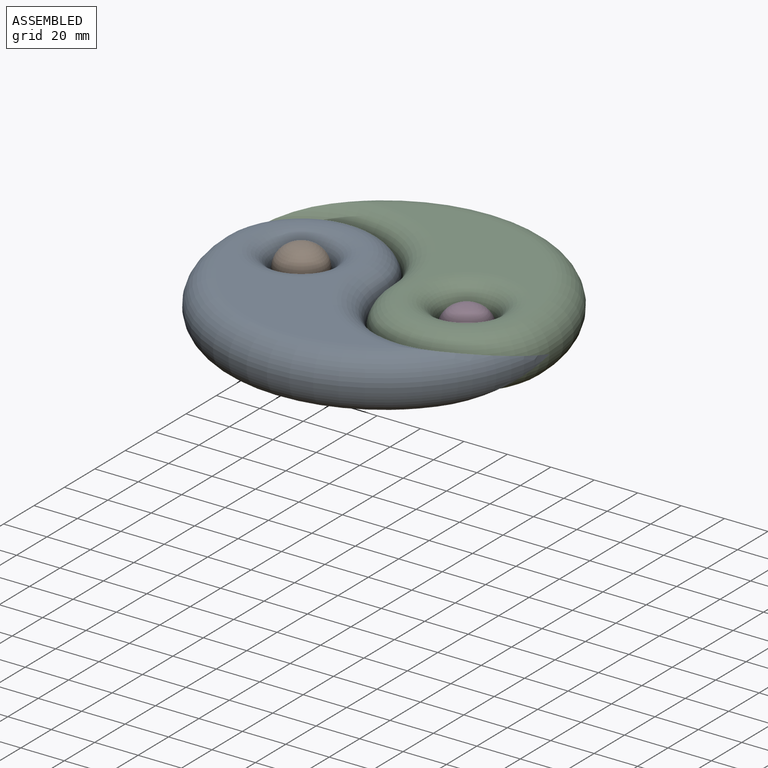
[diagram: assembled view]
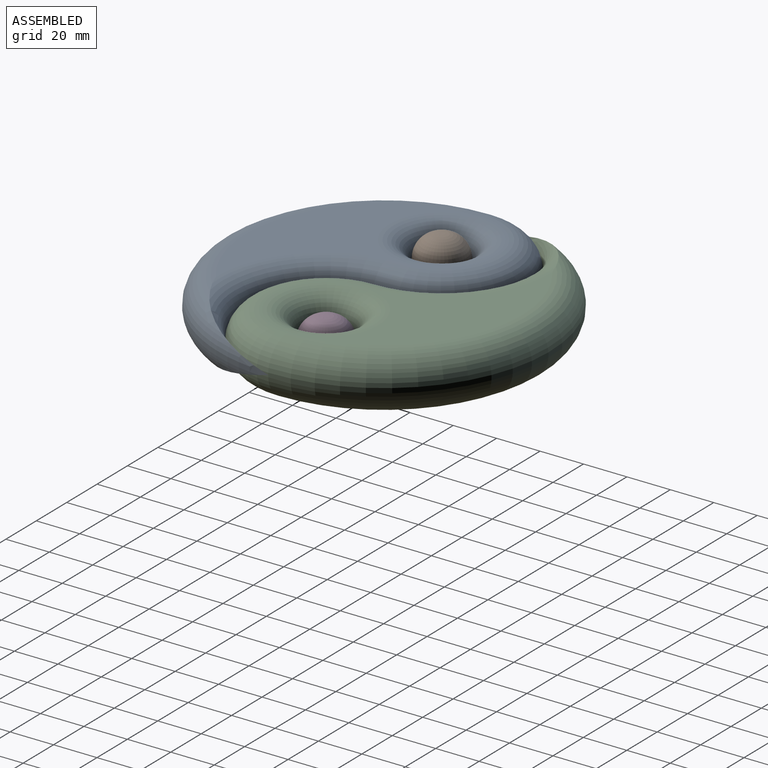
[diagram: assembled view, second angle]
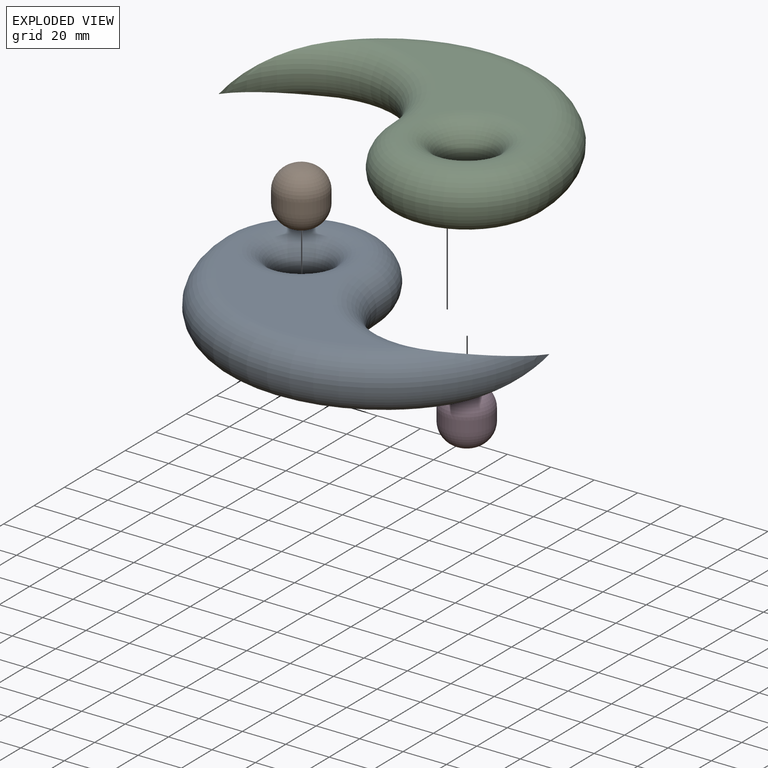
[diagram: exploded view]
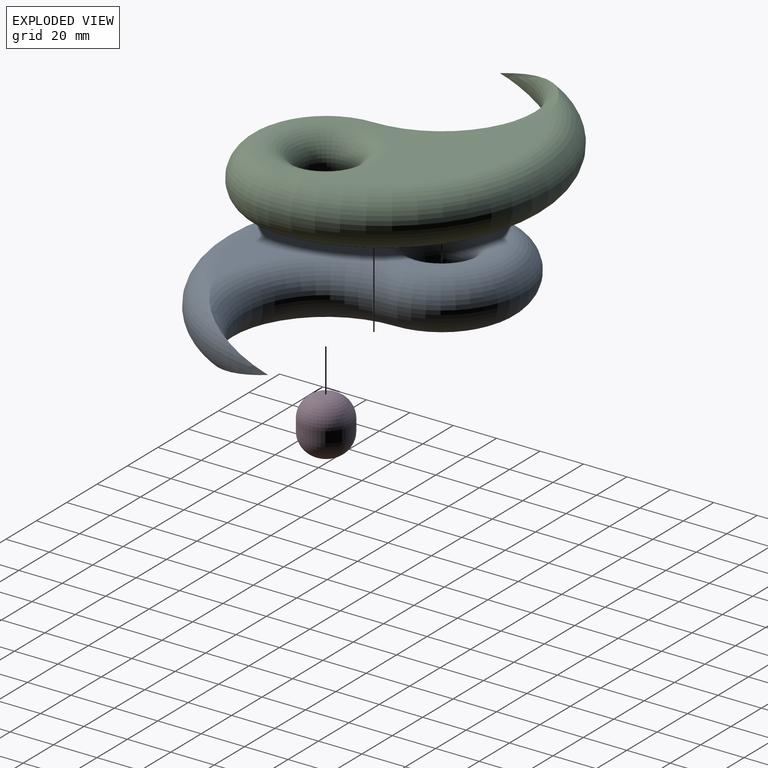
[diagram: exploded view, second angle]
ASSEMBLY  parts=4 mates=3
PART A: 6 faces, bbox 185.3x123.7x25.4 mm
  f0: plane 101.6x88.9mm, normal (0,0,1), area 2589.4mm2, adj f2,f3,f4,f5
  f1: plane 101.6x88.9mm, normal (0,0,-1), area 2589.4mm2, adj f2,f3,f4,f5
  f2: torus R=24.13mm, axis (0,0,1), area 4022.3mm2, adj f0,f1
  f3: torus R=25.4mm, axis (0,0,1), area 4197.2mm2, adj f0,f1,f4,f5
  f4: torus R=50.8mm, axis (0,0,1), area 3850.8mm2, adj f0,f1,f3,f5
  f5: torus R=63.5mm, axis (0,0,1), area 7701.1mm2, adj f0,f1,f3,f4
PART B: 5 faces, bbox 22.9x22.9x25.4 mm
  f0: cylinder r=11.43mm len=22.86mm, axis (0,0,-1), area 364.8mm2, adj f3,f4
  f1: plane 2.54x2.54mm, normal (0,0,1), area 5.1mm2, adj f4
  f2: plane 2.54x2.54mm, normal (0,0,-1), area 5.1mm2, adj f3
  f3: torus R=1.27mm, axis (0,0,1), area 775.9mm2, adj f0,f2
  f4: torus R=1.27mm, axis (0,0,1), area 775.9mm2, adj f0,f1
PART C: 6 faces, bbox 185.3x123.7x25.4 mm
  f0: plane 101.6x88.9mm, normal (0,0,1), area 2589.4mm2, adj f2,f3,f4,f5
  f1: plane 101.6x88.9mm, normal (0,0,-1), area 2589.4mm2, adj f2,f3,f4,f5
  f2: torus R=24.13mm, axis (0,0,1), area 4022.3mm2, adj f0,f1
  f3: torus R=25.4mm, axis (0,0,1), area 4197.2mm2, adj f0,f1,f4,f5
  f4: torus R=50.8mm, axis (0,0,1), area 3850.8mm2, adj f0,f1,f3,f5
  f5: torus R=63.5mm, axis (0,0,1), area 7701.1mm2, adj f0,f1,f3,f4
PART D: 5 faces, bbox 22.9x22.9x25.4 mm
  f0: cylinder r=11.43mm len=22.86mm, axis (0,0,-1), area 364.8mm2, adj f3,f4
  f1: plane 2.54x2.54mm, normal (0,0,1), area 5.1mm2, adj f4
  f2: plane 2.54x2.54mm, normal (0,0,-1), area 5.1mm2, adj f3
  f3: torus R=1.27mm, axis (0,0,1), area 775.9mm2, adj f0,f2
  f4: torus R=1.27mm, axis (0,0,1), area 775.9mm2, adj f0,f1
PLACE A t=(109.37,12.12,-54.46)mm
PLACE B t=(118.39,-66.14,-51.92)mm
PLACE C t=(-91.07,20.44,-54.46)mm
PLACE D t=(136.85,-50.44,-57)mm
MATE fastened B.f0 <-> A.f2  axis (0,0,1) through (-129.17,20.44,-41.76)mm
MATE fastened A.f4 <-> C.f2  axis (0,0,1) through (-52.97,20.44,-29.06)mm
MATE fastened D.f0 <-> C.f2  axis (0,0,1) through (-52.97,20.44,-41.76)mm
